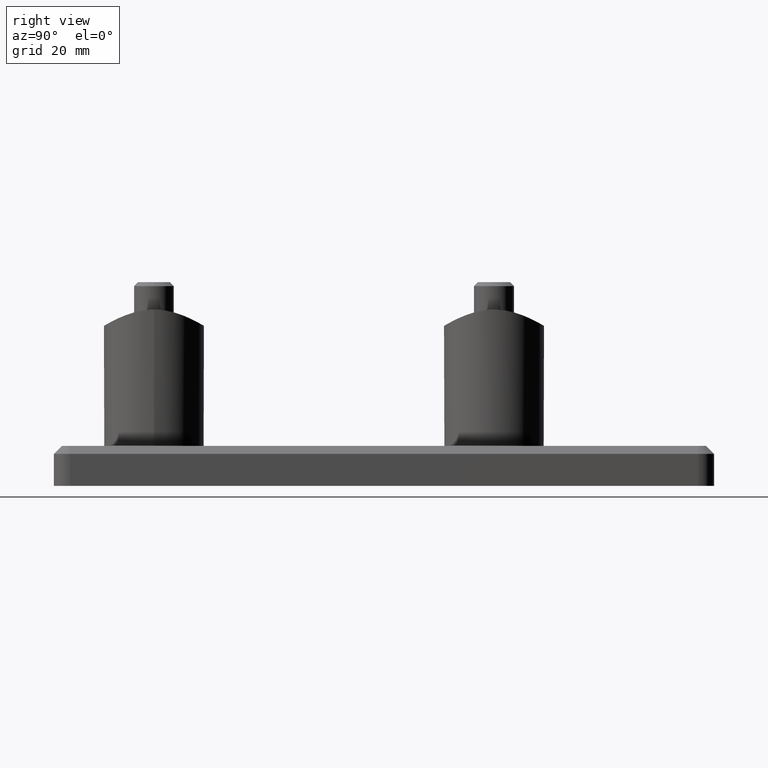
[diagram: clean part render]
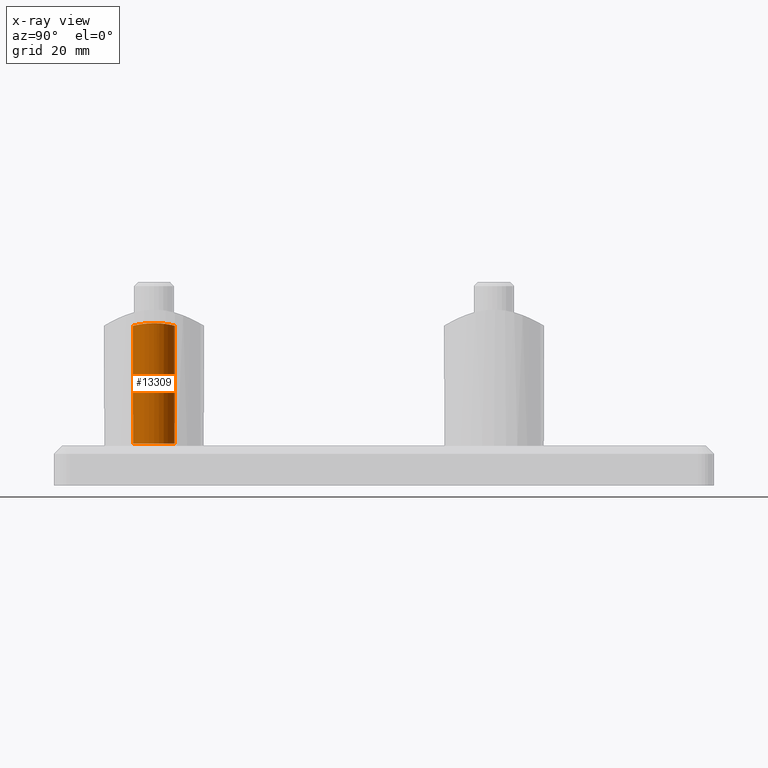
[diagram: x-ray — body ghosted, one internal face saturated and labeled with its STEP entity id]
A machine part, right view, then the same camera in x-ray: the body is ghosted and one INTERNAL B-rep face — a face not visible from any outside direction — is saturated and labeled: STEP entity #13309.
In plain terms, the highlighted cylindrical surface (bore or boss wall) has radius 5.25 mm, axis along (0, -0, -1).
Its self-contained STEP definition (entity closure, byte-faithful):
#43 = CARTESIAN_POINT ( 'NONE',  ( 4.458780791836764124, -30.18215953044532895, -2.776847726254877635 ) ) ;
#115 = CARTESIAN_POINT ( 'NONE',  ( -2.334407108262783748, -30.53050259490624896, 4.714885092475082473 ) ) ;
#179 = CARTESIAN_POINT ( 'NONE',  ( -5.080314899970521658, -30.04148319679836021, -1.367601684218233249 ) ) ;
#248 = CARTESIAN_POINT ( 'NONE',  ( 3.955642348878950720, -30.28428046108580673, -3.468963648993509619 ) ) ;
#322 = CARTESIAN_POINT ( 'NONE',  ( -8.131516293641283255E-17, -30.66034323558474739, 5.249999999999993783 ) ) ;
#1251 = CARTESIAN_POINT ( 'NONE',  ( 5.215797190718341803, -30.00854462263300704, -0.6900691594132644102 ) ) ;
#1287 = AXIS2_PLACEMENT_3D ( 'NONE', #16604, #15172, #19838 ) ;
#1639 = CARTESIAN_POINT ( 'NONE',  ( -3.473745389335787692, -30.37001526546040964, 3.951163175822925311 ) ) ;
#1711 = CARTESIAN_POINT ( 'NONE',  ( -2.633662054082094528, -30.49410541137392272, -4.554543143928251325 ) ) ;
#1750 = CARTESIAN_POINT ( 'NONE',  ( 5.249785339095340397, -30.00005315894137325, 0.3471636571491003020 ) ) ;
#1780 = CARTESIAN_POINT ( 'NONE',  ( -4.980733700981583745, -30.06545816067403720, 1.694806566580060458 ) ) ;
#1848 = CARTESIAN_POINT ( 'NONE',  ( -5.206815332823648390, -30.01065953281406351, -0.6937832773909636819 ) ) ;
#1912 = CARTESIAN_POINT ( 'NONE',  ( -0.6834160169284493325, -30.65180077405253556, -5.216934335561392189 ) ) ;
#2980 = CARTESIAN_POINT ( 'NONE',  ( 5.216108837989342106, -30.00846920363984793, 0.6887101682028775596 ) ) ;
#3217 = CARTESIAN_POINT ( 'NONE',  ( -4.552058762670115222, -30.16278915724814524, -2.637747160829190030 ) ) ;
#3284 = CARTESIAN_POINT ( 'NONE',  ( -3.467067559406464383, -30.37114435440428295, -3.957160628393921353 ) ) ;
#3350 = CARTESIAN_POINT ( 'NONE',  ( -5.216423732593292506, -30.00838941156766637, 0.6852731372967163503 ) ) ;
#3414 = FACE_OUTER_BOUND ( 'NONE', #5370, .T. ) ;
#3415 = CARTESIAN_POINT ( 'NONE',  ( -0.3482998213833093382, -30.66034323558475450, 5.249999999999992895 ) ) ;
#3481 = CARTESIAN_POINT ( 'NONE',  ( -1.368229485200941564, -30.61759557379318863, 5.080304761922125323 ) ) ;
#3874 = CARTESIAN_POINT ( 'NONE',  ( 0.6904966335989233261, -30.65148641930318973, 5.215685302954978120 ) ) ;
#4619 = CARTESIAN_POINT ( 'NONE',  ( 5.250212634685988533, -29.99994734283550102, -0.3406405759875450467 ) ) ;
#4625 = DIRECTION ( 'NONE',  ( 1.800782001297308476E-31, 1.000000000000000000, 6.123233995736667428E-17 ) ) ;
#4637 = AXIS2_PLACEMENT_3D ( 'NONE', #15881, #4625, #12709 ) ;
#4880 = CARTESIAN_POINT ( 'NONE',  ( -2.326580550932541680, -30.53139003024827858, -4.718759541381232658 ) ) ;
#4944 = CARTESIAN_POINT ( 'NONE',  ( -3.955322713342623420, -30.28431366706067962, 3.469008461394501808 ) ) ;
#5370 = EDGE_LOOP ( 'NONE', ( #12965 ) ) ;
#5683 = CARTESIAN_POINT ( 'NONE',  ( 4.716776900634079617, -30.12610173621893139, 2.330517577523392170 ) ) ;
#6090 = B_SPLINE_CURVE_WITH_KNOTS ( 'NONE', 3,
 ( #13350, #8655, #3874, #7057, #18101, #19671, #10243, #15204, #20438, #16423, #8766, #13950, #14223, #8062, #5683, #10333, #18812, #14262, #7876, #2980, #1750, #4619, #1251, #17136, #11613, #6588, #19040, #8048, #43, #17504, #248, #14416, #11321, #12753, #15990, #19111, #8122, #9656, #12686, #12950, #18978, #6389, #1912, #17635, #16121, #4880, #1711, #15859, #3284, #6529, #9789, #3217, #17374, #6453, #179, #9592, #1848, #12819, #11253, #12883, #3350, #7905, #1780, #11116, #17437, #9521, #4944, #1639, #7984, #19162, #115, #17564, #3481, #9724, #3415, #322 ),
 .UNSPECIFIED., .T., .F.,
 ( 4, 2, 2, 2, 2, 2, 2, 2, 2, 2, 2, 2, 2, 2, 2, 2, 2, 2, 2, 2, 2, 2, 2, 2, 2, 2, 2, 2, 2, 2, 2, 2, 2, 2, 2, 2, 2, 4 ),
 ( 0.000000000000000000, 0.001029740522787315083, 0.001544610784180972408, 0.002059481045574630166, 0.003089221568361944815, 0.004118962091149260332, 0.005148702613936577584, 0.006178443136723893968, 0.006693313398117552160, 0.007208183659511210352, 0.008237924182298527603, 0.009267664705085845722, 0.01029740522787316211, 0.01081227548926681943, 0.01132714575066047676, 0.01235688627344779141, 0.01338662679623510605, 0.01441636731902242070, 0.01544610784180973535, 0.01596097810320339094, 0.01647584836459704827, 0.01750558888738436292, 0.01853532941017167757, 0.01956506993295899569, 0.02059481045574631033, 0.02162455097853362498, 0.02265429150132093963, 0.02368403202410825428, 0.02419890228550191161, 0.02471377254689556546, 0.02574351306968288358, 0.02677325359247019823, 0.02780299411525751288, 0.02883273463804482753, 0.02986247516083214218, 0.03089221568361946030, 0.03192195620640677495, 0.03295169672919408960 ),
 .UNSPECIFIED. ) ;
#6340 = CARTESIAN_POINT ( 'NONE',  ( 0.000000000000000000, -30.66034323558474384, 5.249999999999992895 ) ) ;
#6389 = CARTESIAN_POINT ( 'NONE',  ( -0.3411489790172725911, -30.66038052063494135, -5.250145870895686073 ) ) ;
#6453 = CARTESIAN_POINT ( 'NONE',  ( -4.979774736355142117, -30.06569316857452634, -1.698219351374629982 ) ) ;
#6529 = CARTESIAN_POINT ( 'NONE',  ( -3.951560675636962117, -30.28504119495290681, -3.473448708007522256 ) ) ;
#6588 = CARTESIAN_POINT ( 'NONE',  ( 4.783440266021712794, -30.11079269814512926, -2.170473825316482586 ) ) ;
#7057 = CARTESIAN_POINT ( 'NONE',  ( 1.195079687843049854, -30.62629113032735617, 5.115046357055121895 ) ) ;
#7876 = CARTESIAN_POINT ( 'NONE',  ( 5.114540403873012231, -30.03316402804460239, 1.197447173588310765 ) ) ;
#7905 = CARTESIAN_POINT ( 'NONE',  ( -5.082523775439349301, -30.04095156436137515, 1.359642564336970727 ) ) ;
#7984 = CARTESIAN_POINT ( 'NONE',  ( -3.207697608114612020, -30.41330752533807313, 4.170343399685105368 ) ) ;
#8048 = CARTESIAN_POINT ( 'NONE',  ( 4.546805487392170164, -30.16325396656278457, -2.630312936885044639 ) ) ;
#8062 = CARTESIAN_POINT ( 'NONE',  ( 4.554559769941254110, -30.16226576101781731, 2.633919728567324814 ) ) ;
#8098 = EDGE_LOOP ( 'NONE', ( #19562 ) ) ;
#8122 = CARTESIAN_POINT ( 'NONE',  ( 1.370065462107592280, -30.61746723543765114, -5.079785849215164184 ) ) ;
#8655 = CARTESIAN_POINT ( 'NONE',  ( 0.3482998213833091716, -30.66034323558474384, 5.249999999999994671 ) ) ;
#8766 = CARTESIAN_POINT ( 'NONE',  ( 3.471673180478178189, -30.37036394208308820, 3.953004271253769186 ) ) ;
#9521 = CARTESIAN_POINT ( 'NONE',  ( -4.174427244027140382, -30.24127023243491408, 3.202372865988525774 ) ) ;
#9592 = CARTESIAN_POINT ( 'NONE',  ( -5.181318840543973181, -30.01692896710948233, -0.8635933852275480271 ) ) ;
#9656 = CARTESIAN_POINT ( 'NONE',  ( 0.8631364074926968222, -30.64290819774404184, -5.181428032226953917 ) ) ;
#9724 = CARTESIAN_POINT ( 'NONE',  ( -0.6915699433081129444, -30.65148207226974364, 5.215676313930408980 ) ) ;
#9789 = CARTESIAN_POINT ( 'NONE',  ( -4.172295704905443436, -30.24168297518222204, -3.204824115937080720 ) ) ;
#10157 = VERTEX_POINT ( 'NONE', #14165 ) ;
#10243 = CARTESIAN_POINT ( 'NONE',  ( 1.856184454112402182, -30.57724666922683099, 4.913923038399417464 ) ) ;
#10333 = CARTESIAN_POINT ( 'NONE',  ( 4.913523815634659897, -30.08090574356343083, 1.857143731800566577 ) ) ;
#11116 = CARTESIAN_POINT ( 'NONE',  ( -4.717973050763848875, -30.12583524156034187, 2.328262826762201421 ) ) ;
#11253 = CARTESIAN_POINT ( 'NONE',  ( -5.249908094230179678, -30.00002275968114418, -0.1759319816130872904 ) ) ;
#11321 = CARTESIAN_POINT ( 'NONE',  ( 3.205658137181515155, -30.41358916587996930, -4.171670282120301998 ) ) ;
#11613 = CARTESIAN_POINT ( 'NONE',  ( 4.981684002612903228, -30.06523880262662018, -1.692440284925289973 ) ) ;
#11819 = CIRCLE ( 'NONE', #4637, 5.249999999999995559 ) ;
#12686 = CARTESIAN_POINT ( 'NONE',  ( 0.6904329719521135056, -30.64946370979773249, -5.207280382202474023 ) ) ;
#12709 = DIRECTION ( 'NONE',  ( 8.011868568650899397E-31, -6.195440985631459015E-17, 1.000000000000000000 ) ) ;
#12753 = CARTESIAN_POINT ( 'NONE',  ( 2.638331455173650308, -30.49349319320847940, -4.551734193452544375 ) ) ;
#12819 = CARTESIAN_POINT ( 'NONE',  ( -5.241129184459311752, -30.00220156119068449, -0.3504654304259517961 ) ) ;
#12883 = CARTESIAN_POINT ( 'NONE',  ( -5.250181628321566762, -29.99995502129468150, 0.3435711130264408331 ) ) ;
#12950 = CARTESIAN_POINT ( 'NONE',  ( 0.3459057713732852091, -30.65815259211499466, -5.241451694422071483 ) ) ;
#12965 = ORIENTED_EDGE ( 'NONE', *, *, #19678, .F. ) ;
#13309 = ADVANCED_FACE ( 'NONE', ( #16741, #3414 ), #17250, .F. ) ;
#13350 = CARTESIAN_POINT ( 'NONE',  ( -8.131516293641283255E-17, -30.66034323558474739, 5.249999999999993783 ) ) ;
#13950 = CARTESIAN_POINT ( 'NONE',  ( 3.953814846203984601, -30.28460195283666678, 3.470750005768042712 ) ) ;
#14165 = CARTESIAN_POINT ( 'NONE',  ( 4.206230998541718899E-30, -0.4999999999999938383, 5.249999999999995559 ) ) ;
#14223 = CARTESIAN_POINT ( 'NONE',  ( 4.170668289941308338, -30.24202487841924025, 3.207346855234340932 ) ) ;
#14262 = CARTESIAN_POINT ( 'NONE',  ( 5.071933253408950293, -30.04344953212784830, 1.366613164314453677 ) ) ;
#14416 = CARTESIAN_POINT ( 'NONE',  ( 3.469210861769501886, -30.37079834843176940, -3.955425538025397092 ) ) ;
#15172 = DIRECTION ( 'NONE',  ( 1.800782001297308476E-31, 1.000000000000000000, 6.123233995736667428E-17 ) ) ;
#15204 = CARTESIAN_POINT ( 'NONE',  ( 2.332476841568219772, -30.53074541563181654, 4.715961535419107342 ) ) ;
#15859 = CARTESIAN_POINT ( 'NONE',  ( -3.203618083507129732, -30.41392139615658508, -4.173352398257517137 ) ) ;
#15881 = CARTESIAN_POINT ( 'NONE',  ( 0.000000000000000000, -0.4999999999999935052, -3.061616997868376239E-17 ) ) ;
#15990 = CARTESIAN_POINT ( 'NONE',  ( 2.330907184574601221, -30.53091138631831214, -4.716678052985275649 ) ) ;
#16121 = CARTESIAN_POINT ( 'NONE',  ( -1.694163682403202698, -30.59299508408569324, -4.980911371082609840 ) ) ;
#16423 = CARTESIAN_POINT ( 'NONE',  ( 3.203082806422699047, -30.41400165912948239, 4.173745192493108824 ) ) ;
#16604 = CARTESIAN_POINT ( 'NONE',  ( 0.000000000000000000, 0.000000000000000000, 0.000000000000000000 ) ) ;
#16741 = FACE_OUTER_BOUND ( 'NONE', #8098, .T. ) ;
#17136 = CARTESIAN_POINT ( 'NONE',  ( 5.081232061290827495, -30.04126279909594999, -1.364483975277423156 ) ) ;
#17250 = CYLINDRICAL_SURFACE ( 'NONE', #1287, 5.249999999999995559 ) ;
#17374 = CARTESIAN_POINT ( 'NONE',  ( -4.713971403334164201, -30.12673980582385980, -2.336788180125012104 ) ) ;
#17437 = CARTESIAN_POINT ( 'NONE',  ( -4.556893165891179542, -30.16175420859693901, 2.629783158960021350 ) ) ;
#17504 = CARTESIAN_POINT ( 'NONE',  ( 4.174227597799118783, -30.24129671343468573, -3.202305691155964862 ) ) ;
#17564 = CARTESIAN_POINT ( 'NONE',  ( -1.702622078311042841, -30.59229298603016645, 4.978019288913954732 ) ) ;
#17635 = CARTESIAN_POINT ( 'NONE',  ( -1.365632405878986599, -30.61781387109181196, -5.081191734796757231 ) ) ;
#18101 = CARTESIAN_POINT ( 'NONE',  ( 1.361811605131325598, -30.61590723144168180, 5.073243410274501208 ) ) ;
#18812 = CARTESIAN_POINT ( 'NONE',  ( 4.971505262243548273, -30.06730056653667660, 1.695958105437102681 ) ) ;
#18978 = CARTESIAN_POINT ( 'NONE',  ( 0.1739307311609937234, -30.66032441025339850, -5.249926349354786304 ) ) ;
#19040 = CARTESIAN_POINT ( 'NONE',  ( 4.708966949258715395, -30.12761016722668828, -2.327577400842641975 ) ) ;
#19111 = CARTESIAN_POINT ( 'NONE',  ( 1.697314184838486062, -30.59274469369636407, -4.979890030569008808 ) ) ;
#19162 = CARTESIAN_POINT ( 'NONE',  ( -2.635462127116897424, -30.49389170523515702, 4.553616957203788118 ) ) ;
#19562 = ORIENTED_EDGE ( 'NONE', *, *, #20474, .T. ) ;
#19671 = CARTESIAN_POINT ( 'NONE',  ( 1.692301210969957337, -30.59140403507810646, 4.972770471187422991 ) ) ;
#19678 = EDGE_CURVE ( 'NONE', #20024, #20024, #6090, .T. ) ;
#19838 = DIRECTION ( 'NONE',  ( 8.011868568650899397E-31, -6.123233995736859713E-17, 1.000000000000000000 ) ) ;
#20024 = VERTEX_POINT ( 'NONE', #6340 ) ;
#20438 = CARTESIAN_POINT ( 'NONE',  ( 2.633460016791151492, -30.49412887073067324, 4.554643425848229121 ) ) ;
#20474 = EDGE_CURVE ( 'NONE', #10157, #10157, #11819, .T. ) ;